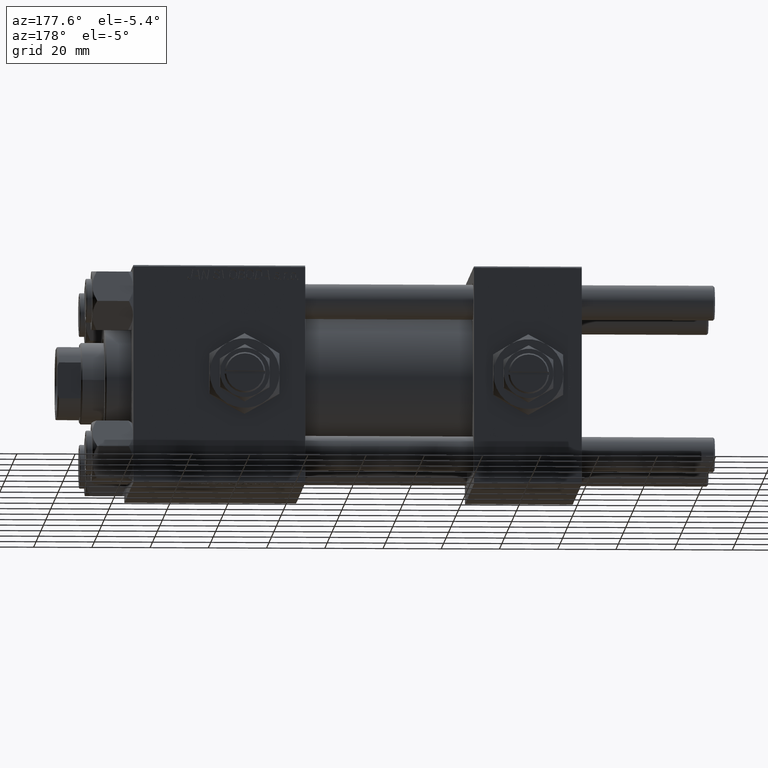
[diagram: clean part render]
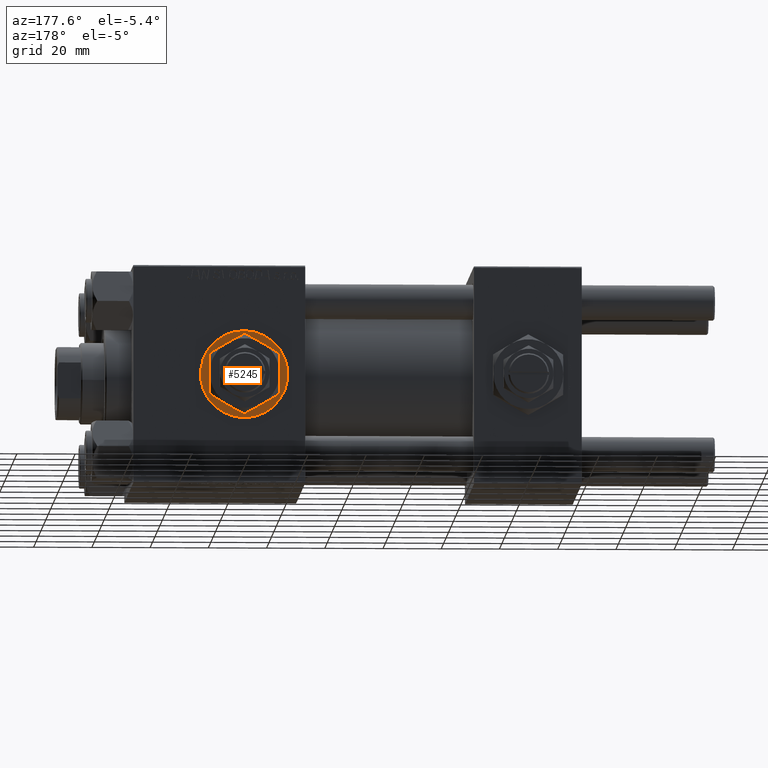
[diagram: same view with one face highlighted and labeled with its STEP entity id]
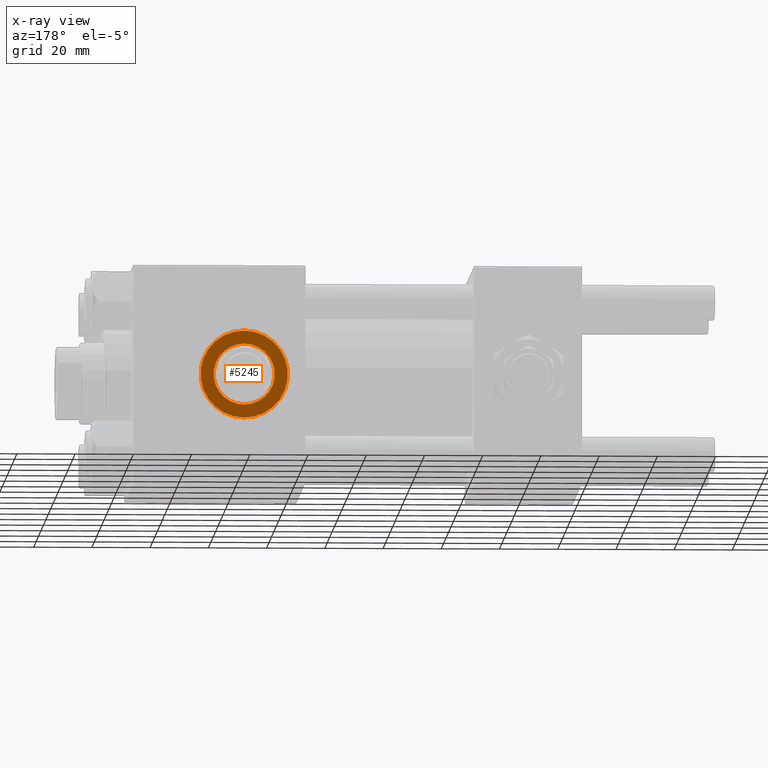
[diagram: x-ray of the same camera — body ghosted, the highlighted face saturated]
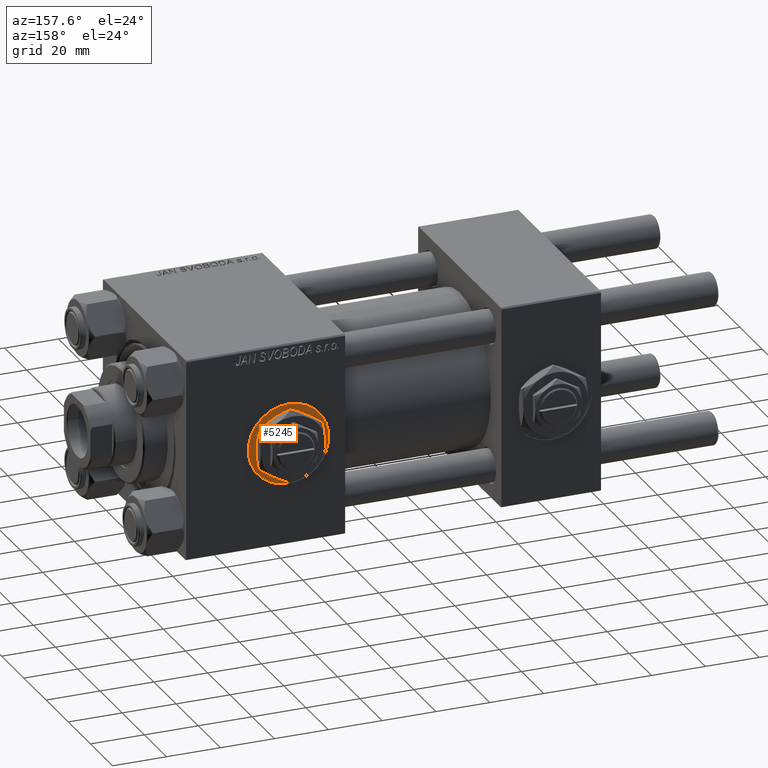
[diagram: same view with one face highlighted and labeled with its STEP entity id]
A machine part, auxiliary view. The second image highlights one B-rep face of the part: STEP entity #5245.
The next image is the same camera in x-ray: the body ghosted, the highlighted face saturated — about 0% of this face is hidden behind the body in this view.
A second angle (auxiliary view) of the same face is appended — the face is thin or edge-on in the first view.
In plain terms, the highlighted planar face has unit normal (0, 1, 0).
Its self-contained STEP definition (entity closure, byte-faithful):
#1174 = ORIENTED_EDGE ( 'NONE', *, *, #48531, .F. ) ;
#1452 = DIRECTION ( 'NONE',  ( 0.000000000000000000, 0.000000000000000000, 1.000000000000000000 ) ) ;
#2683 = EDGE_LOOP ( 'NONE', ( #1174, #45826 ) ) ;
#2744 = VERTEX_POINT ( 'NONE', #38737 ) ;
#2749 = CARTESIAN_POINT ( 'NONE',  ( 115.9600000000000080, 37.29999999999999716, 0.000000000000000000 ) ) ;
#3535 = EDGE_CURVE ( 'NONE', #28350, #4433, #34057, .T. ) ;
#4433 = VERTEX_POINT ( 'NONE', #23549 ) ;
#5245 = ADVANCED_FACE ( 'NONE', ( #47444, #7966 ), #11390, .T. ) ;
#5467 = AXIS2_PLACEMENT_3D ( 'NONE', #2749, #42754, #34358 ) ;
#6510 = AXIS2_PLACEMENT_3D ( 'NONE', #32689, #13191, #21091 ) ;
#6792 = CIRCLE ( 'NONE', #13540, 10.47999999999998622 ) ;
#7339 = CIRCLE ( 'NONE', #6510, 15.00000000000002487 ) ;
#7966 = FACE_OUTER_BOUND ( 'NONE', #29340, .T. ) ;
#9173 = EDGE_CURVE ( 'NONE', #2744, #34140, #7339, .T. ) ;
#10016 = AXIS2_PLACEMENT_3D ( 'NONE', #32663, #32403, #48452 ) ;
#11390 = PLANE ( 'NONE',  #40816 ) ;
#13191 = DIRECTION ( 'NONE',  ( 0.000000000000000000, 1.000000000000000000, 0.000000000000000000 ) ) ;
#13540 = AXIS2_PLACEMENT_3D ( 'NONE', #37510, #44883, #1452 ) ;
#18132 = EDGE_CURVE ( 'NONE', #34140, #2744, #49527, .T. ) ;
#19014 = DIRECTION ( 'NONE',  ( 0.000000000000000000, 1.000000000000000000, 0.000000000000000000 ) ) ;
#21091 = DIRECTION ( 'NONE',  ( 0.000000000000000000, 0.000000000000000000, 1.000000000000000000 ) ) ;
#23549 = CARTESIAN_POINT ( 'NONE',  ( 115.9600000000000080, 37.29999999999999716, 10.47999999999998622 ) ) ;
#24016 = CARTESIAN_POINT ( 'NONE',  ( 115.9600000000000080, 37.29999999999999716, 0.000000000000000000 ) ) ;
#27436 = DIRECTION ( 'NONE',  ( 0.000000000000000000, -0.000000000000000000, 1.000000000000000000 ) ) ;
#28350 = VERTEX_POINT ( 'NONE', #32380 ) ;
#29340 = EDGE_LOOP ( 'NONE', ( #46056, #50364 ) ) ;
#32380 = CARTESIAN_POINT ( 'NONE',  ( 115.9600000000000080, 37.29999999999999716, -10.47999999999998622 ) ) ;
#32403 = DIRECTION ( 'NONE',  ( 0.000000000000000000, 1.000000000000000000, 0.000000000000000000 ) ) ;
#32663 = CARTESIAN_POINT ( 'NONE',  ( 115.9600000000000080, 37.29999999999999716, 0.000000000000000000 ) ) ;
#32689 = CARTESIAN_POINT ( 'NONE',  ( 115.9600000000000080, 37.29999999999999716, 0.000000000000000000 ) ) ;
#34057 = CIRCLE ( 'NONE', #5467, 10.47999999999998622 ) ;
#34140 = VERTEX_POINT ( 'NONE', #35500 ) ;
#34358 = DIRECTION ( 'NONE',  ( 0.000000000000000000, 0.000000000000000000, 1.000000000000000000 ) ) ;
#35500 = CARTESIAN_POINT ( 'NONE',  ( 115.9600000000000080, 37.29999999999999716, 15.00000000000002487 ) ) ;
#37510 = CARTESIAN_POINT ( 'NONE',  ( 115.9600000000000080, 37.29999999999999716, 0.000000000000000000 ) ) ;
#38737 = CARTESIAN_POINT ( 'NONE',  ( 115.9600000000000080, 37.29999999999999716, -15.00000000000002487 ) ) ;
#40816 = AXIS2_PLACEMENT_3D ( 'NONE', #24016, #19014, #27436 ) ;
#42754 = DIRECTION ( 'NONE',  ( 0.000000000000000000, 1.000000000000000000, 0.000000000000000000 ) ) ;
#44883 = DIRECTION ( 'NONE',  ( 0.000000000000000000, 1.000000000000000000, 0.000000000000000000 ) ) ;
#45826 = ORIENTED_EDGE ( 'NONE', *, *, #3535, .F. ) ;
#46056 = ORIENTED_EDGE ( 'NONE', *, *, #18132, .T. ) ;
#47444 = FACE_BOUND ( 'NONE', #2683, .T. ) ;
#48452 = DIRECTION ( 'NONE',  ( 0.000000000000000000, 0.000000000000000000, 1.000000000000000000 ) ) ;
#48531 = EDGE_CURVE ( 'NONE', #4433, #28350, #6792, .T. ) ;
#49527 = CIRCLE ( 'NONE', #10016, 15.00000000000002487 ) ;
#50364 = ORIENTED_EDGE ( 'NONE', *, *, #9173, .T. ) ;